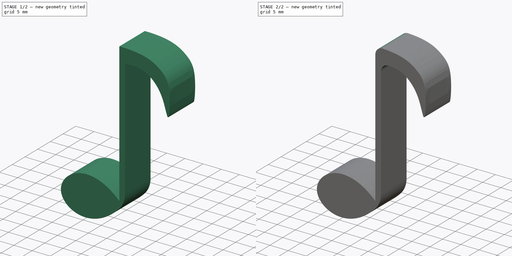
[diagram: build sequence overview — one tinted view per stage of 2, left to right]
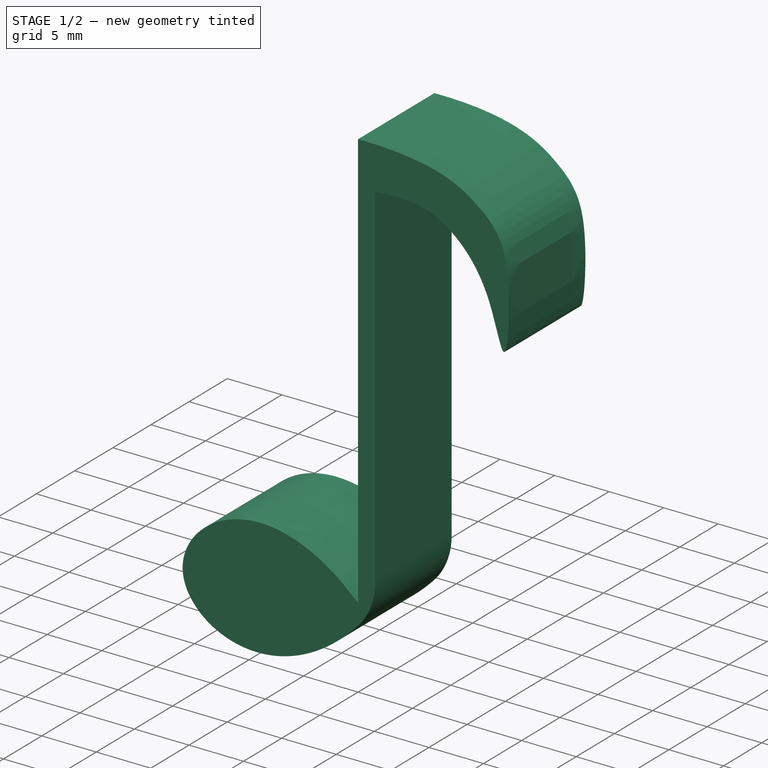
[diagram: stage 1 of 2 — iso view after this stage's code; geometry added in this stage tinted green]
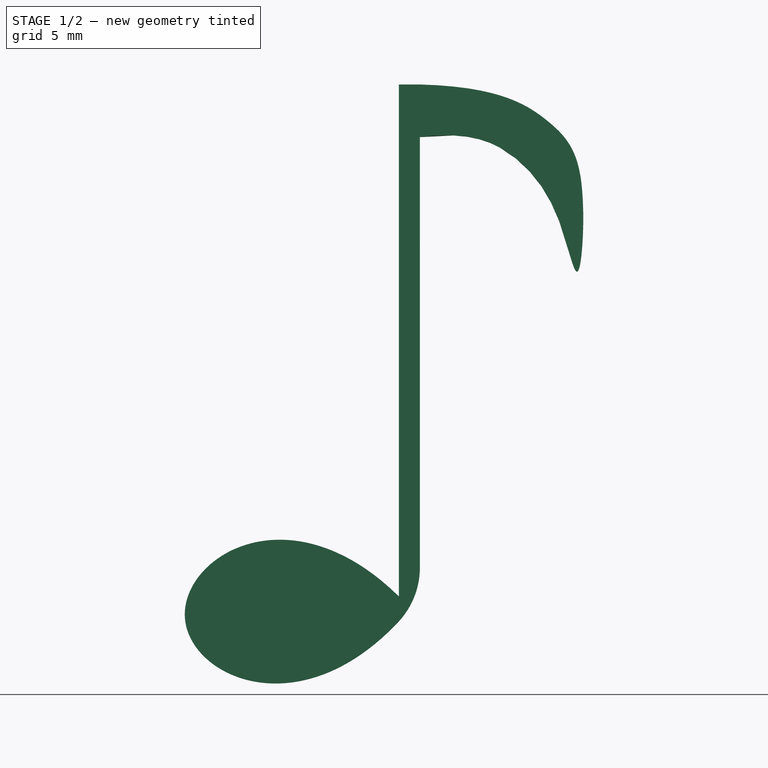
[diagram: stage 1 of 2 — front view after this stage's code; geometry added in this stage tinted green]
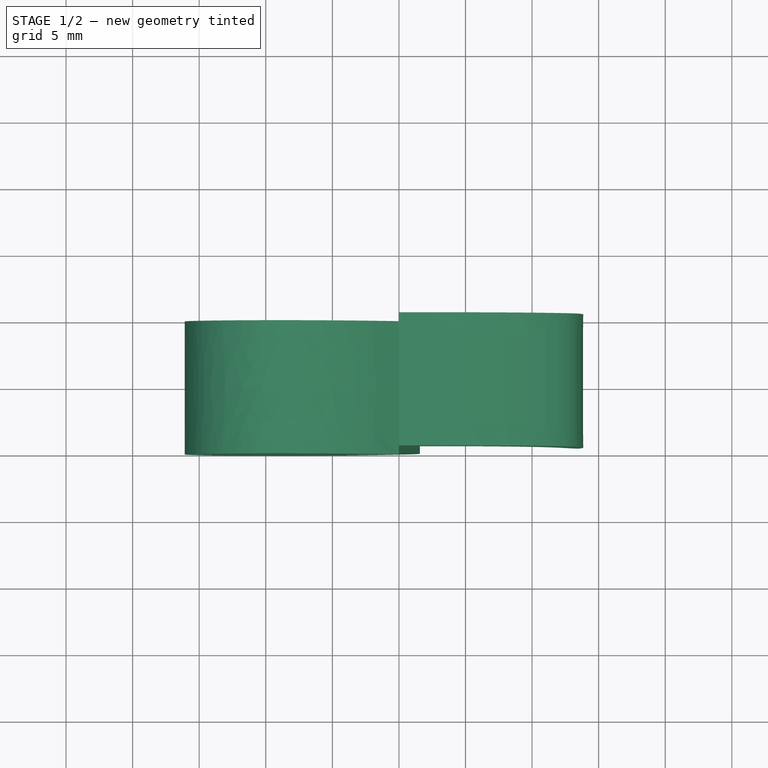
[diagram: stage 1 of 2 — top view after this stage's code; geometry added in this stage tinted green]
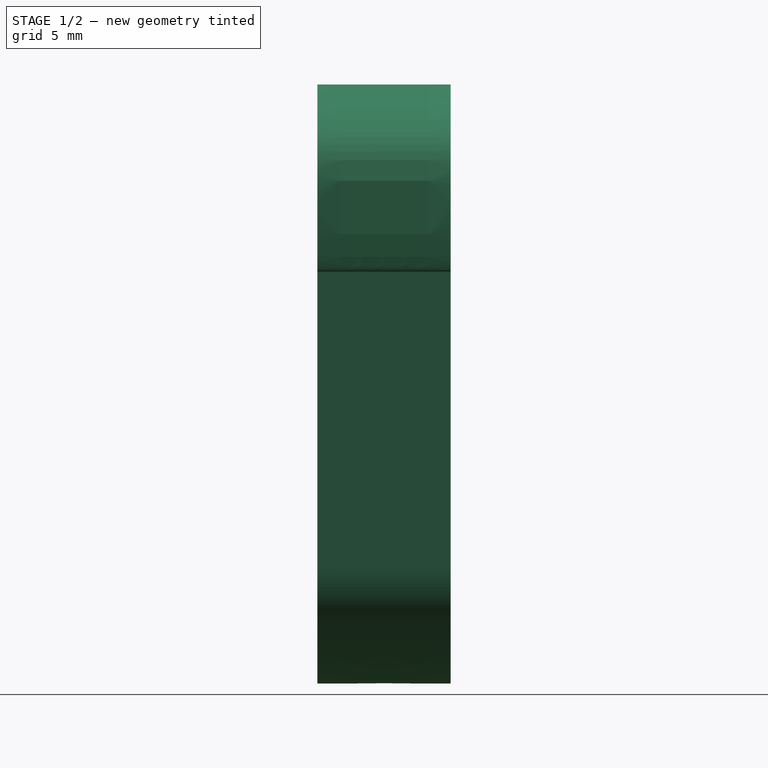
[diagram: stage 1 of 2 — right view after this stage's code; geometry added in this stage tinted green]
FCSTD DOCUMENT  (FreeCAD 0.20R29410 (Git))
Label: corchea?
License: Creative Commons Attribution-ShareAlike
LicenseURL: http://creativecommons.org/licenses/by-sa/4.0/
objects: PartDesign::Fillet×3, Sketcher::SketchObject×1, PartDesign::Pad×1, PartDesign::Body×1
note: 10 computed .brp shape members not serialized (recipe doc carries the construction recipe); baked Part::Feature solids carry a one-line shape summary decoded from their .brp

FEATURE [Sketcher::SketchObject] Sketch
  FullyConstrained = false
  MapMode = 5
  Placement = pos=(0,0,0) rot=(1,0,0;1.5708rad)
  Support = -> [XZ_Plane001]
  sketch-geometry (29):
    g0-g4: Circle x5 (B-spline internal-alignment scaffolding for g5; pole/knot coordinates omitted)
    g5: BSplineCurve PolesCount=5 KnotsCount=3 Degree=3 IsPeriodic=0
    g6: GeomPoint X=0 Y=-38.45 Z=0
    g7: GeomPoint X=-16.06 Y=-40.2265 Z=0
    g8: GeomPoint X=1.57582 Y=-38.4475 Z=0
    g9-g17: Circle x9 (B-spline internal-alignment scaffolding for g18; pole/knot coordinates omitted)
    g18: BSplineCurve PolesCount=9 KnotsCount=7 Degree=3 IsPeriodic=0
    g19-g22: GeomPoint x4 (B-spline internal-alignment scaffolding for g18; pole/knot coordinates omitted)
    g23: GeomPoint X=12.0412 Y=-10.2799 Z=0
    g24: GeomPoint X=8.78691 Y=-5.56838 Z=0
    g25: GeomPoint X=1.57582 Y=-3.95752 Z=0
    g26: LineSegment StartX=1.57582 StartY=-38.4475 StartZ=0 EndX=1.57582 EndY=-3.95752 EndZ=0
    g27: LineSegment StartX=0 StartY=0 StartZ=0 EndX=1.58 EndY=0 EndZ=0
    g28: LineSegment StartX=0 StartY=0 StartZ=0 EndX=0 EndY=-38.45 EndZ=0
  constraints (43):
    c: Weight(g0) = 1
    c: Equal(g0, g1-g4) x4
    c: InternalAlignment(g0-g4 -> g5) x5
    c: InternalAlignment(g6,g5)
    c: InternalAlignment(g7,g5)
    c: InternalAlignment(g8,g5)
    c: Weight(g9) = 1
    c: Equal(g9, g10-g16) x7
    c: InternalAlignment(g9-g17 -> g18) x9
    c: InternalAlignment(g19-g22 -> g18) x4
    c: DistanceX(g11) = 11.6917
    c: DistanceY(g11) = -2.78385
    c: DistanceX(g10) = 7.44415
    c: DistanceY(g10) = -0.157071
    c: DistanceX(g18) = 1.57582
    c: DistanceY(g18) = -3.95752
    c: DistanceX(g16) = 5.36803
    c: DistanceY(g16) = -3.46309
    c: DistanceX(g15) = 9.23249
    c: DistanceY(g15) = -5.24333
    c: DistanceX(g14) = 12.3557
    c: DistanceY(g14) = -9.86398
    c: DistanceX(g12) = 14.2067
    c: DistanceY(g12) = -5.91363
    c: DistanceX(g13) = 13.5918
    c: DistanceY(g13) = -16.98
    c: DistanceX(g2) = -24.8139
    c: DistanceY(g2) = -40.9125
    c: DistanceX(g1) = -8.34879
    c: DistanceX(g3) = -6.26321
    c: DistanceY(g3) = -48.8158
    c: Coincident(g26,g5)
    c: Coincident(g26,g18)
    c: Vertical(g26)
    c: Coincident(g27,g-1)
    c: Coincident(g27,g18)
    c: Horizontal(g27)
    c: DistanceY(g26,g26) = 34.49
    c: Coincident(g28,g27)
    c: Coincident(g28,g5)
    c: Vertical(g28)
    c: DistanceY(g28,g28) = 38.45
    c: DistanceX(g27,g27) = 1.58
FEATURE [PartDesign::Pad] Pad
  Direction = (0,-1,-2e-16)
  Length = 10
  Length2 = 10
  Placement = pos=(0,0,0) rot=(1,0,0;1.5708rad)
  Profile = -> Sketch
  ReferenceAxis = -> Sketch [N_Axis]
  Refine = true
  Type = 0
FEATURE [PartDesign::Fillet] Fillet
  Base = -> Pad [Edge5]
  BaseFeature = -> Pad
  Placement = pos=(0,0,0) rot=(1,0,0;1.5708rad)
  Radius = 6
  Refine = true
  SupportTransform = false
  UseAllEdges = false
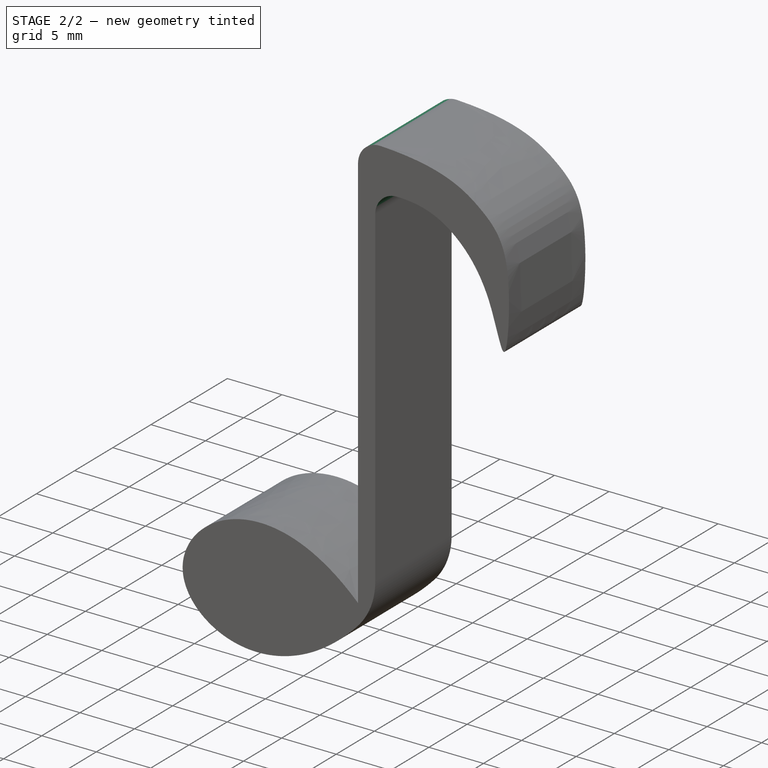
[diagram: stage 2 of 2 — iso view after this stage's code; geometry added in this stage tinted green]
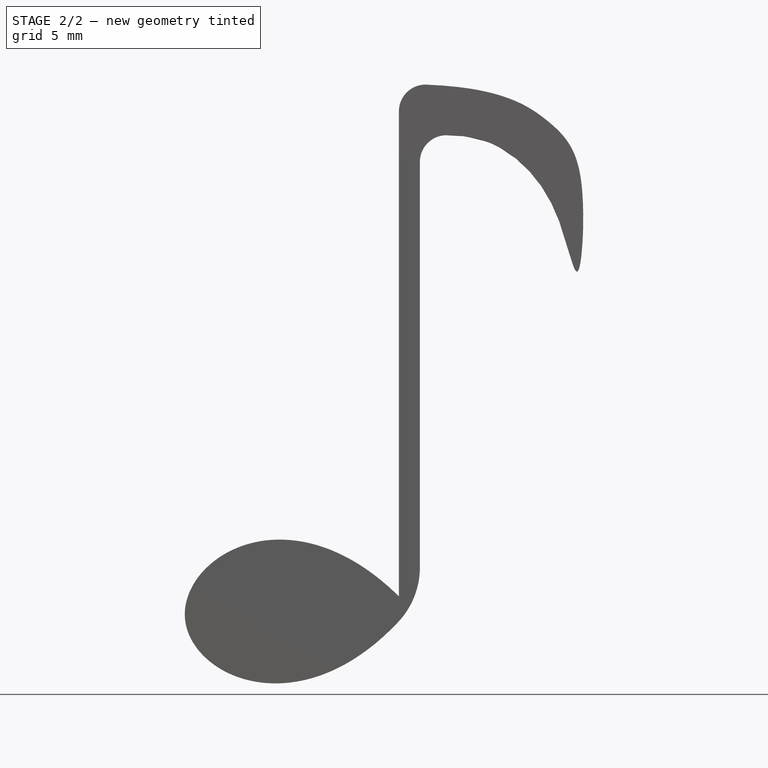
[diagram: stage 2 of 2 — front view after this stage's code; geometry added in this stage tinted green]
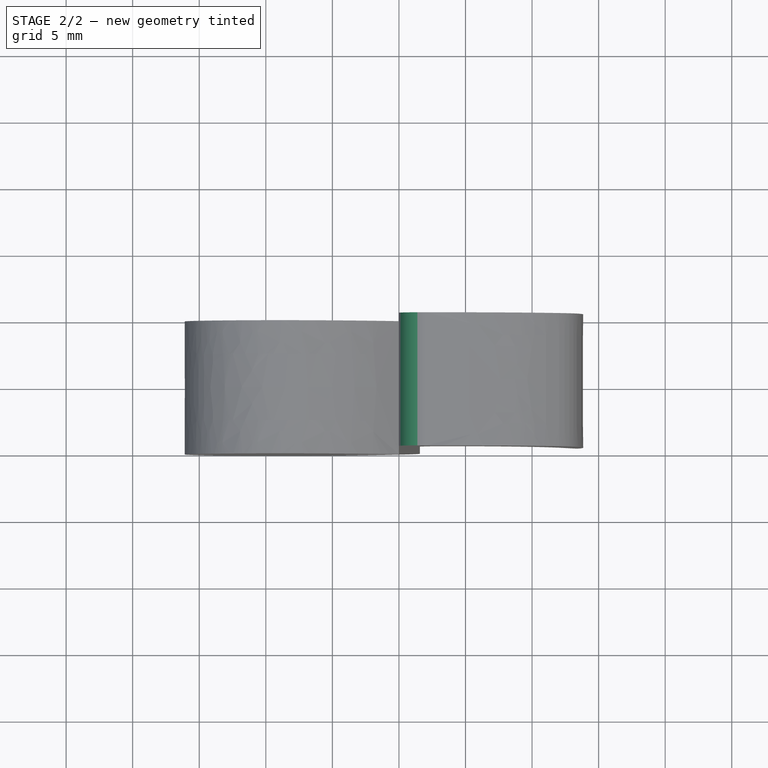
[diagram: stage 2 of 2 — top view after this stage's code; geometry added in this stage tinted green]
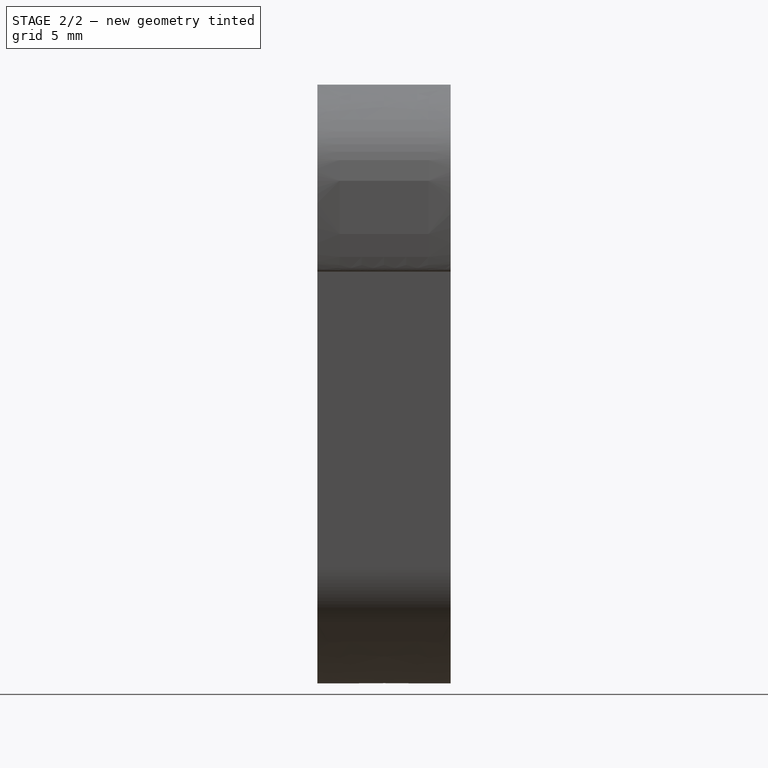
[diagram: stage 2 of 2 — right view after this stage's code; geometry added in this stage tinted green]
FEATURE [PartDesign::Fillet] Fillet001
  Base = -> Fillet [Edge17]
  BaseFeature = -> Fillet
  Placement = pos=(0,0,0) rot=(1,0,0;1.5708rad)
  Radius = 2
  Refine = true
  SupportTransform = false
  UseAllEdges = false
FEATURE [PartDesign::Fillet] Fillet002
  Base = -> Fillet001 [Edge19]
  BaseFeature = -> Fillet001
  Placement = pos=(0,0,0) rot=(1,0,0;1.5708rad)
  Radius = 2
  Refine = true
  SupportTransform = false
  UseAllEdges = false
FEATURE [PartDesign::Body] Body001
  Group = -> [Sketch,Pad,Fillet,Fillet001,Fillet002]
  Origin = -> Origin001
  Tip = -> Fillet002
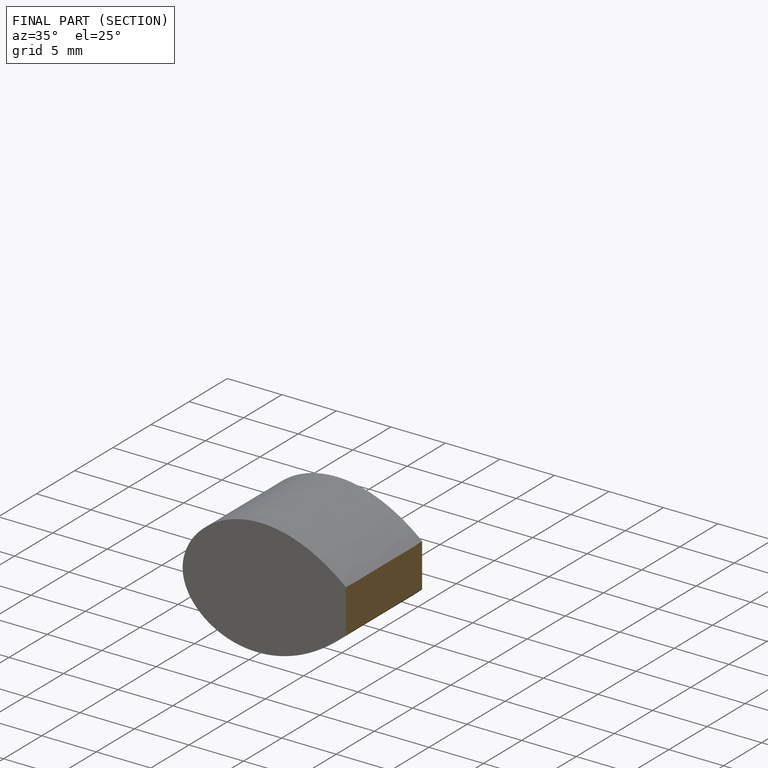
[diagram: finished part — half-section view (interior)]
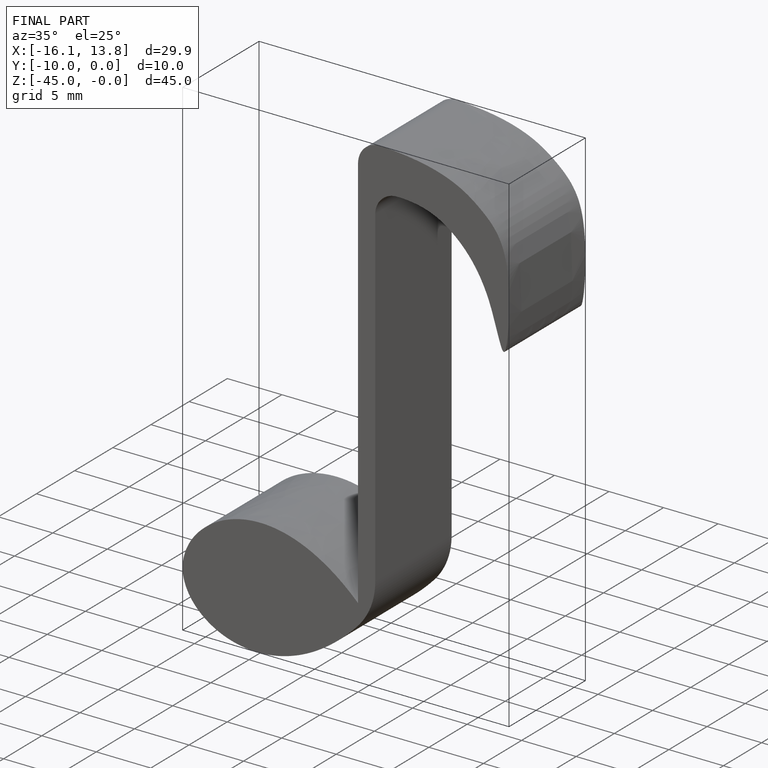
[diagram: finished part — iso view with bounding-box wireframe]
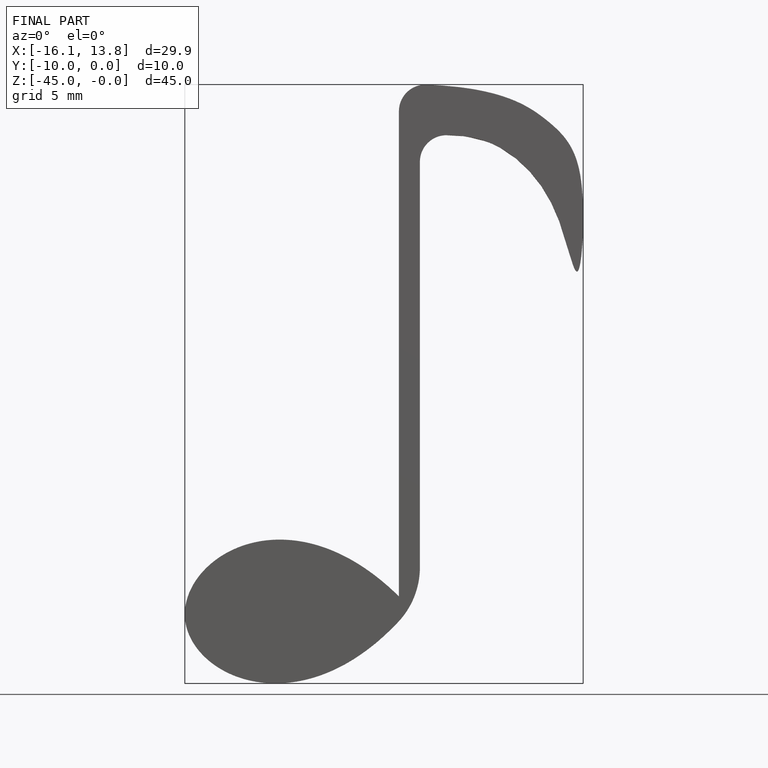
[diagram: finished part — front view with bounding-box wireframe]
